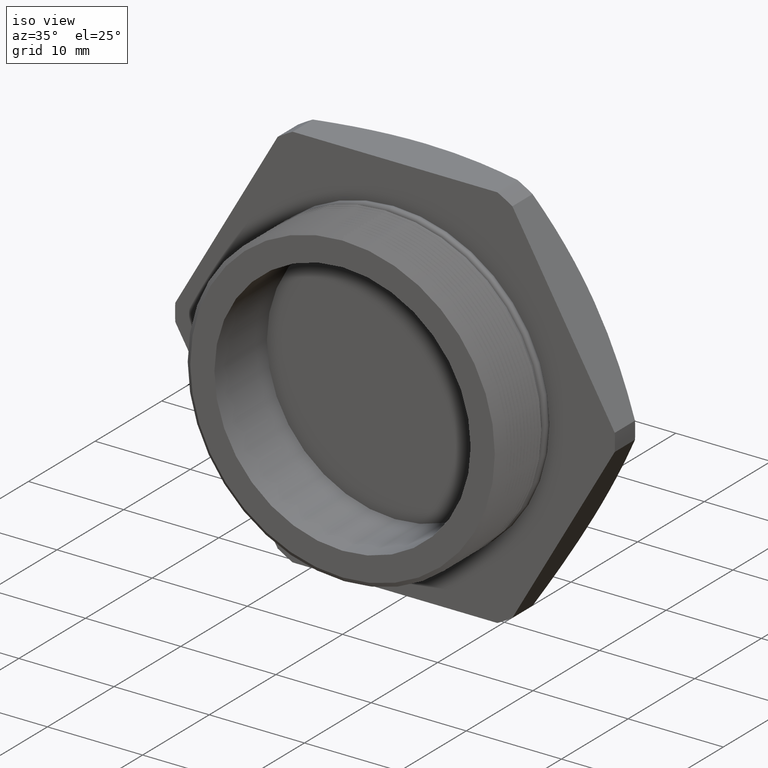
[diagram: clean part render]
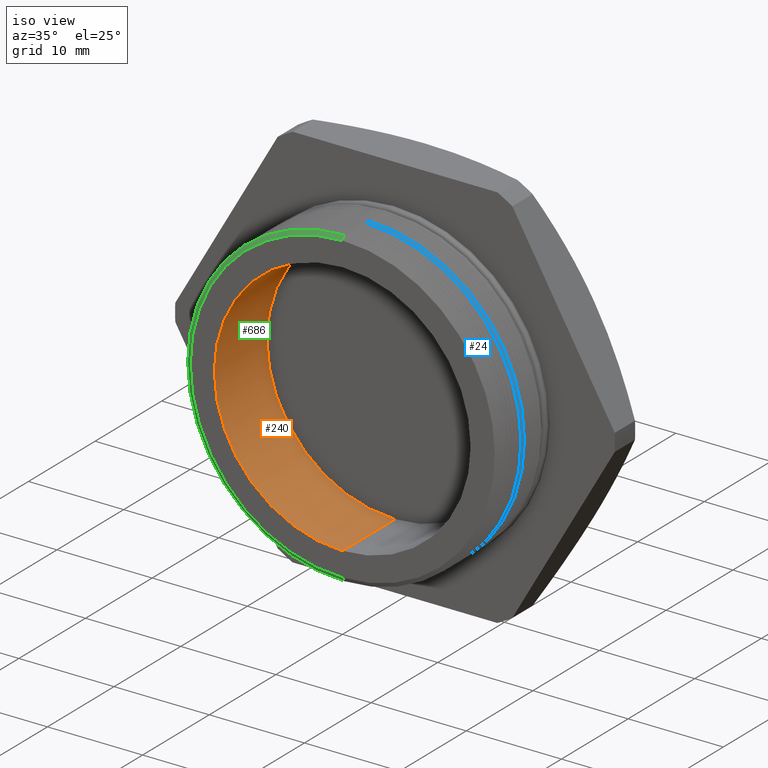
[diagram: same view with three faces highlighted in distinct colors, each labeled with its STEP entity id]
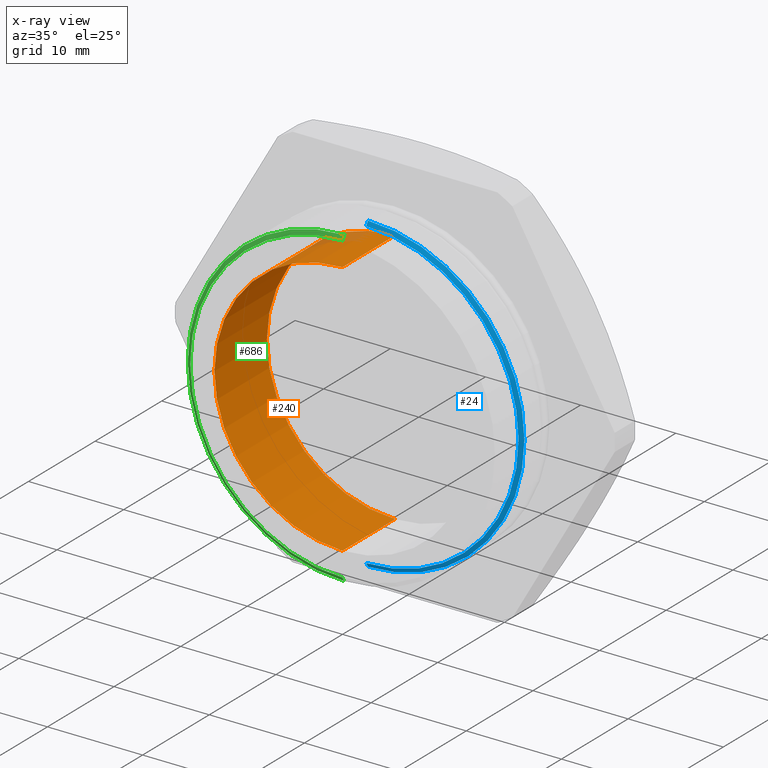
[diagram: x-ray of the same camera — body ghosted, the three highlighted faces saturated]
A machine part, iso view with three faces highlighted in distinct colors.
The next image is the same camera in x-ray (body ghosted, the three faces saturated) — at least one of them is partly hidden behind the body in this view.
Their STEP definitions:

[orange] entity #240 — the highlighted cylindrical surface (partial cylindrical patch) has radius 13.462 mm, axis along (0, -1, 0).
#227 = ORIENTED_EDGE ( 'NONE', *, *, #228, .T. ) ;
#228 = EDGE_CURVE ( 'NONE', #299, #229, #1215, .T. ) ;
#229 = VERTEX_POINT ( 'NONE', #1210 ) ;
#230 = VERTEX_POINT ( 'NONE', #1209 ) ;
#231 = VERTEX_POINT ( 'NONE', #1208 ) ;
#237 = ORIENTED_EDGE ( 'NONE', *, *, #238, .F. ) ;
#238 = EDGE_CURVE ( 'NONE', #230, #231, #1200, .T. ) ;
#240 = ADVANCED_FACE ( 'NONE', ( #1256 ), #1255, .F. ) ;
#241 = EDGE_LOOP ( 'NONE', ( #237, #295, #227, #290 ) ) ;
#290 = ORIENTED_EDGE ( 'NONE', *, *, #291, .F. ) ;
#291 = EDGE_CURVE ( 'NONE', #231, #229, #1382, .T. ) ;
#295 = ORIENTED_EDGE ( 'NONE', *, *, #296, .T. ) ;
#296 = EDGE_CURVE ( 'NONE', #230, #299, #1372, .T. ) ;
#299 = VERTEX_POINT ( 'NONE', #1364 ) ;
#1196 = DIRECTION ( 'NONE',  ( 0.0000000000000000000, 0.0000000000000000000, -1.000000000000000000 ) ) ;
#1197 = DIRECTION ( 'NONE',  ( 0.0000000000000000000, -1.000000000000000000, 0.0000000000000000000 ) ) ;
#1198 = CARTESIAN_POINT ( 'NONE',  ( 0.0000000000000000000, 0.3100000000000000500, 0.0000000000000000000 ) ) ;
#1199 = AXIS2_PLACEMENT_3D ( 'NONE', #1198, #1197, #1196 ) ;
#1200 = CIRCLE ( 'NONE', #1199, 0.5299999999999999200 ) ;
#1208 = CARTESIAN_POINT ( 'NONE',  ( 0.0000000000000000000, 0.3100000000000000500, -0.5299999999999999200 ) ) ;
#1209 = CARTESIAN_POINT ( 'NONE',  ( 6.490628035480971200E-017, 0.3100000000000000500, 0.5299999999999999200 ) ) ;
#1210 = CARTESIAN_POINT ( 'NONE',  ( 0.0000000000000000000, -1.714448895351328100E-017, -0.5299999999999999200 ) ) ;
#1211 = DIRECTION ( 'NONE',  ( 0.0000000000000000000, 0.0000000000000000000, -1.000000000000000000 ) ) ;
#1212 = DIRECTION ( 'NONE',  ( 0.0000000000000000000, -1.000000000000000000, 0.0000000000000000000 ) ) ;
#1213 = CARTESIAN_POINT ( 'NONE',  ( 0.0000000000000000000, -1.714448895351328100E-017, 0.0000000000000000000 ) ) ;
#1214 = AXIS2_PLACEMENT_3D ( 'NONE', #1213, #1212, #1211 ) ;
#1215 = CIRCLE ( 'NONE', #1214, 0.5299999999999999200 ) ;
#1250 = DIRECTION ( 'NONE',  ( 0.0000000000000000000, 0.0000000000000000000, -1.000000000000000000 ) ) ;
#1251 = DIRECTION ( 'NONE',  ( 0.0000000000000000000, -1.000000000000000000, 0.0000000000000000000 ) ) ;
#1252 = CARTESIAN_POINT ( 'NONE',  ( 0.0000000000000000000, 0.0000000000000000000, 0.0000000000000000000 ) ) ;
#1253 = AXIS2_PLACEMENT_3D ( 'NONE', #1252, #1251, #1250 ) ;
#1255 = CYLINDRICAL_SURFACE ( 'NONE', #1253, 0.5299999999999999200 ) ;
#1256 = FACE_OUTER_BOUND ( 'NONE', #241, .T. ) ;
#1364 = CARTESIAN_POINT ( 'NONE',  ( 6.490628035480971200E-017, -1.714448895351328100E-017, 0.5299999999999999200 ) ) ;
#1369 = DIRECTION ( 'NONE',  ( 0.0000000000000000000, -1.000000000000000000, 0.0000000000000000000 ) ) ;
#1370 = VECTOR ( 'NONE', #1369, 39.37007874015748100 ) ;
#1371 = CARTESIAN_POINT ( 'NONE',  ( 6.490628035480971200E-017, 0.0000000000000000000, 0.5299999999999999200 ) ) ;
#1372 = LINE ( 'NONE', #1371, #1370 ) ;
#1379 = DIRECTION ( 'NONE',  ( 0.0000000000000000000, -1.000000000000000000, 0.0000000000000000000 ) ) ;
#1380 = VECTOR ( 'NONE', #1379, 39.37007874015748100 ) ;
#1381 = CARTESIAN_POINT ( 'NONE',  ( 0.0000000000000000000, 0.0000000000000000000, -0.5299999999999999200 ) ) ;
#1382 = LINE ( 'NONE', #1381, #1380 ) ;

[blue] entity #24 — the highlighted conical surface has half-angle 60 deg.
#23 = EDGE_LOOP ( 'NONE', ( #125, #123, #120, #91 ) ) ;
#24 = ADVANCED_FACE ( 'NONE', ( #776 ), #775, .T. ) ;
#90 = EDGE_CURVE ( 'NONE', #121, #119, #957, .T. ) ;
#91 = ORIENTED_EDGE ( 'NONE', *, *, #92, .F. ) ;
#92 = EDGE_CURVE ( 'NONE', #128, #119, #953, .T. ) ;
#93 = VERTEX_POINT ( 'NONE', #949 ) ;
#95 = EDGE_CURVE ( 'NONE', #93, #128, #946, .T. ) ;
#119 = VERTEX_POINT ( 'NONE', #963 ) ;
#120 = ORIENTED_EDGE ( 'NONE', *, *, #90, .T. ) ;
#121 = VERTEX_POINT ( 'NONE', #962 ) ;
#122 = EDGE_CURVE ( 'NONE', #93, #121, #1025, .T. ) ;
#123 = ORIENTED_EDGE ( 'NONE', *, *, #122, .T. ) ;
#125 = ORIENTED_EDGE ( 'NONE', *, *, #95, .F. ) ;
#128 = VERTEX_POINT ( 'NONE', #1017 ) ;
#775 = CONICAL_SURFACE ( 'NONE', #836, 0.6473205080756885300, 1.047197551196601600 ) ;
#776 = FACE_OUTER_BOUND ( 'NONE', #23, .T. ) ;
#781 = CARTESIAN_POINT ( 'NONE',  ( 0.0000000000000000000, 0.1499999999999998000, 0.0000000000000000000 ) ) ;
#834 = DIRECTION ( 'NONE',  ( 0.0000000000000000000, 0.0000000000000000000, 1.000000000000000000 ) ) ;
#835 = DIRECTION ( 'NONE',  ( 0.0000000000000000000, 1.000000000000000000, 0.0000000000000000000 ) ) ;
#836 = AXIS2_PLACEMENT_3D ( 'NONE', #781, #835, #834 ) ;
#938 = DIRECTION ( 'NONE',  ( 0.0000000000000000000, 0.0000000000000000000, -1.000000000000000000 ) ) ;
#939 = DIRECTION ( 'NONE',  ( 0.0000000000000000000, -1.000000000000000000, 0.0000000000000000000 ) ) ;
#940 = CARTESIAN_POINT ( 'NONE',  ( 0.0000000000000000000, 0.1399999999999999000, 0.0000000000000000000 ) ) ;
#941 = AXIS2_PLACEMENT_3D ( 'NONE', #940, #939, #938 ) ;
#946 = CIRCLE ( 'NONE', #941, 0.6300000000000000000 ) ;
#949 = CARTESIAN_POINT ( 'NONE',  ( 7.821332358500815000E-017, 0.1399999999999999000, -0.6300000000000000000 ) ) ;
#950 = DIRECTION ( 'NONE',  ( 0.0000000000000000000, 0.4999999999999965600, 0.8660254037844405900 ) ) ;
#951 = VECTOR ( 'NONE', #950, 39.37007874015748100 ) ;
#952 = CARTESIAN_POINT ( 'NONE',  ( 0.0000000000000000000, 0.1499999999999998000, 0.6473205080756885300 ) ) ;
#953 = LINE ( 'NONE', #952, #951 ) ;
#954 = DIRECTION ( 'NONE',  ( 0.0000000000000000000, 0.0000000000000000000, -1.000000000000000000 ) ) ;
#955 = DIRECTION ( 'NONE',  ( 0.0000000000000000000, -1.000000000000000000, 0.0000000000000000000 ) ) ;
#956 = AXIS2_PLACEMENT_3D ( 'NONE', #961, #955, #954 ) ;
#957 = CIRCLE ( 'NONE', #956, 0.6473205080756885300 ) ;
#961 = CARTESIAN_POINT ( 'NONE',  ( 0.0000000000000000000, 0.1499999999999998000, 0.0000000000000000000 ) ) ;
#962 = CARTESIAN_POINT ( 'NONE',  ( 0.0000000000000000000, 0.1499999999999998000, -0.6473205080756885300 ) ) ;
#963 = CARTESIAN_POINT ( 'NONE',  ( 7.927389882373304600E-017, 0.1499999999999998000, 0.6473205080756885300 ) ) ;
#1017 = CARTESIAN_POINT ( 'NONE',  ( 0.0000000000000000000, 0.1399999999999999000, 0.6300000000000000000 ) ) ;
#1022 = DIRECTION ( 'NONE',  ( 1.060575238724909300E-016, 0.4999999999999965600, -0.8660254037844405900 ) ) ;
#1023 = VECTOR ( 'NONE', #1022, 39.37007874015748100 ) ;
#1024 = CARTESIAN_POINT ( 'NONE',  ( 7.927389882373304600E-017, 0.1499999999999998000, -0.6473205080756885300 ) ) ;
#1025 = LINE ( 'NONE', #1024, #1023 ) ;

[green] entity #686 — the highlighted conical surface has half-angle 60 deg.
#286 = VERTEX_POINT ( 'NONE', #1321 ) ;
#287 = VERTEX_POINT ( 'NONE', #1320 ) ;
#288 = VERTEX_POINT ( 'NONE', #1319 ) ;
#293 = VERTEX_POINT ( 'NONE', #1373 ) ;
#298 = EDGE_CURVE ( 'NONE', #286, #288, #1368, .T. ) ;
#300 = EDGE_CURVE ( 'NONE', #287, #293, #1363, .T. ) ;
#685 = EDGE_CURVE ( 'NONE', #293, #288, #2036, .T. ) ;
#686 = ADVANCED_FACE ( 'NONE', ( #2031 ), #2030, .T. ) ;
#687 = EDGE_LOOP ( 'NONE', ( #688, #689, #691, #692 ) ) ;
#688 = ORIENTED_EDGE ( 'NONE', *, *, #298, .F. ) ;
#689 = ORIENTED_EDGE ( 'NONE', *, *, #690, .F. ) ;
#690 = EDGE_CURVE ( 'NONE', #287, #286, #2024, .T. ) ;
#691 = ORIENTED_EDGE ( 'NONE', *, *, #300, .T. ) ;
#692 = ORIENTED_EDGE ( 'NONE', *, *, #685, .T. ) ;
#1319 = CARTESIAN_POINT ( 'NONE',  ( 0.0000000000000000000, 0.009999999999999790300, -0.6473205080756885300 ) ) ;
#1320 = CARTESIAN_POINT ( 'NONE',  ( 0.0000000000000000000, -1.024442997624098700E-016, 0.6299999999999997800 ) ) ;
#1321 = CARTESIAN_POINT ( 'NONE',  ( 7.821332358500813800E-017, -1.024442997624098700E-016, -0.6299999999999997800 ) ) ;
#1360 = DIRECTION ( 'NONE',  ( 0.0000000000000000000, 0.4999999999999965600, 0.8660254037844405900 ) ) ;
#1361 = VECTOR ( 'NONE', #1360, 39.37007874015748100 ) ;
#1362 = CARTESIAN_POINT ( 'NONE',  ( 0.0000000000000000000, 0.009999999999999790300, 0.6473205080756885300 ) ) ;
#1363 = LINE ( 'NONE', #1362, #1361 ) ;
#1365 = DIRECTION ( 'NONE',  ( 1.060575238724909300E-016, 0.4999999999999965600, -0.8660254037844405900 ) ) ;
#1366 = VECTOR ( 'NONE', #1365, 39.37007874015748100 ) ;
#1367 = CARTESIAN_POINT ( 'NONE',  ( 7.927389882373304600E-017, 0.009999999999999790300, -0.6473205080756885300 ) ) ;
#1368 = LINE ( 'NONE', #1367, #1366 ) ;
#1373 = CARTESIAN_POINT ( 'NONE',  ( 7.927389882373304600E-017, 0.009999999999999790300, 0.6473205080756885300 ) ) ;
#2021 = DIRECTION ( 'NONE',  ( 0.0000000000000000000, 0.0000000000000000000, -1.000000000000000000 ) ) ;
#2022 = DIRECTION ( 'NONE',  ( 0.0000000000000000000, -1.000000000000000000, 0.0000000000000000000 ) ) ;
#2023 = AXIS2_PLACEMENT_3D ( 'NONE', #2029, #2022, #2021 ) ;
#2024 = CIRCLE ( 'NONE', #2023, 0.6299999999999997800 ) ;
#2025 = DIRECTION ( 'NONE',  ( 0.0000000000000000000, 0.0000000000000000000, 1.000000000000000000 ) ) ;
#2026 = DIRECTION ( 'NONE',  ( 0.0000000000000000000, 1.000000000000000000, 0.0000000000000000000 ) ) ;
#2027 = CARTESIAN_POINT ( 'NONE',  ( 0.0000000000000000000, 0.009999999999999790300, 0.0000000000000000000 ) ) ;
#2028 = AXIS2_PLACEMENT_3D ( 'NONE', #2027, #2026, #2025 ) ;
#2029 = CARTESIAN_POINT ( 'NONE',  ( 0.0000000000000000000, -1.024442997624098700E-016, 0.0000000000000000000 ) ) ;
#2030 = CONICAL_SURFACE ( 'NONE', #2028, 0.6473205080756885300, 1.047197551196601600 ) ;
#2031 = FACE_OUTER_BOUND ( 'NONE', #687, .T. ) ;
#2032 = DIRECTION ( 'NONE',  ( 0.0000000000000000000, 0.0000000000000000000, -1.000000000000000000 ) ) ;
#2033 = DIRECTION ( 'NONE',  ( 0.0000000000000000000, -1.000000000000000000, 0.0000000000000000000 ) ) ;
#2034 = CARTESIAN_POINT ( 'NONE',  ( 0.0000000000000000000, 0.009999999999999790300, 0.0000000000000000000 ) ) ;
#2035 = AXIS2_PLACEMENT_3D ( 'NONE', #2034, #2033, #2032 ) ;
#2036 = CIRCLE ( 'NONE', #2035, 0.6473205080756885300 ) ;